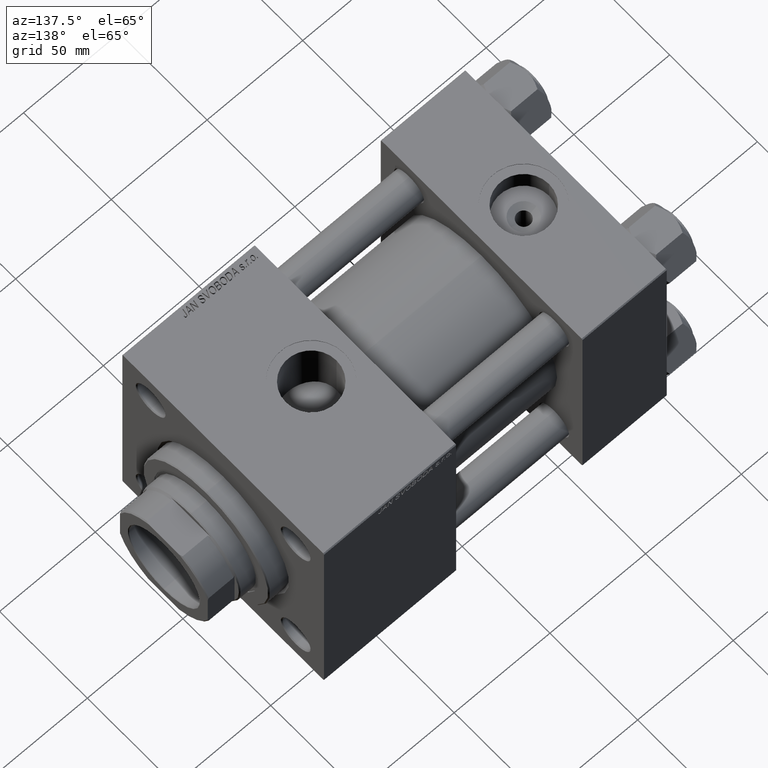
[diagram: clean part render]
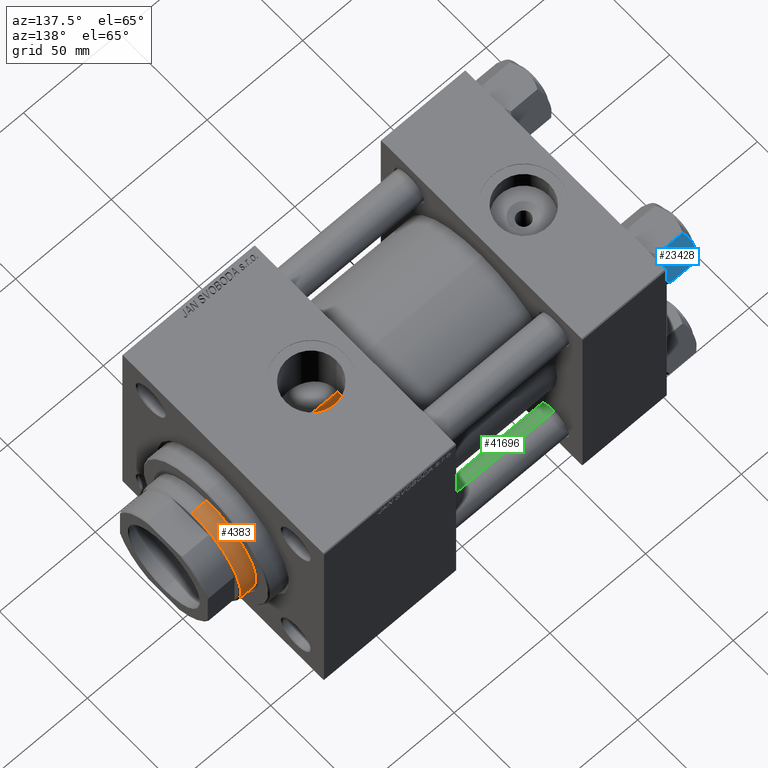
[diagram: same view with three faces highlighted in distinct colors, each labeled with its STEP entity id]
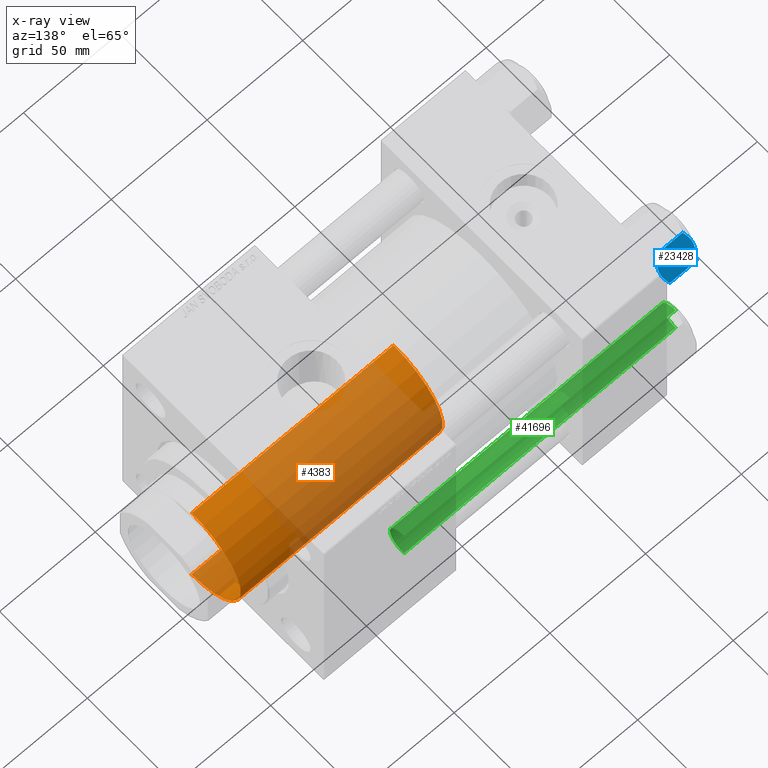
[diagram: x-ray of the same camera — body ghosted, the three highlighted faces saturated]
A machine part, auxiliary view with three faces highlighted in distinct colors.
The next image is the same camera in x-ray (body ghosted, the three faces saturated) — at least one of them is partly hidden behind the body in this view.
Their STEP definitions:

[orange] entity #4383 — the highlighted cylindrical surface (partial cylindrical patch) has radius 28 mm, axis along (-1, 0, 0).
#357 = DIRECTION ( 'NONE',  ( -0.000000000000000000, -0.000000000000000000, -1.000000000000000000 ) ) ;
#610 = CARTESIAN_POINT ( 'NONE',  ( 0.000000000000000000, 0.000000000000000000, 152.0000000000000000 ) ) ;
#2007 = EDGE_CURVE ( 'NONE', #3173, #47064, #9698, .T. ) ;
#2145 = CARTESIAN_POINT ( 'NONE',  ( 0.000000000000000000, 0.000000000000000000, 151.4999999999999432 ) ) ;
#2280 = ORIENTED_EDGE ( 'NONE', *, *, #49222, .T. ) ;
#3173 = VERTEX_POINT ( 'NONE', #11022 ) ;
#3791 = CARTESIAN_POINT ( 'NONE',  ( 0.000000000000000000, 0.000000000000000000, 46.00000000000000000 ) ) ;
#4383 = ADVANCED_FACE ( 'NONE', ( #35434 ), #32111, .T. ) ;
#7218 = VERTEX_POINT ( 'NONE', #13693 ) ;
#8846 = AXIS2_PLACEMENT_3D ( 'NONE', #610, #357, #16232 ) ;
#8937 = ORIENTED_EDGE ( 'NONE', *, *, #30103, .F. ) ;
#9698 = CIRCLE ( 'NONE', #40817, 28.00000000000000000 ) ;
#11022 = CARTESIAN_POINT ( 'NONE',  ( 28.00000000000000000, 3.429011037612589276E-15, 151.4999999999999432 ) ) ;
#12284 = CARTESIAN_POINT ( 'NONE',  ( 28.00000000000000000, 3.429011037612589276E-15, 152.0000000000000000 ) ) ;
#12530 = DIRECTION ( 'NONE',  ( -0.000000000000000000, -0.000000000000000000, -1.000000000000000000 ) ) ;
#13693 = CARTESIAN_POINT ( 'NONE',  ( -28.00000000000000000, 0.000000000000000000, 46.00000000000000000 ) ) ;
#14314 = EDGE_CURVE ( 'NONE', #47064, #7218, #35450, .T. ) ;
#16232 = DIRECTION ( 'NONE',  ( -1.000000000000000000, 0.000000000000000000, 0.000000000000000000 ) ) ;
#18019 = VECTOR ( 'NONE', #50575, 1000.000000000000000 ) ;
#19409 = EDGE_LOOP ( 'NONE', ( #8937, #36592, #27982, #2280 ) ) ;
#19418 = DIRECTION ( 'NONE',  ( 0.000000000000000000, 0.000000000000000000, 1.000000000000000000 ) ) ;
#20861 = VECTOR ( 'NONE', #12530, 1000.000000000000000 ) ;
#27871 = CARTESIAN_POINT ( 'NONE',  ( 28.00000000000000000, 3.429011037612589276E-15, 46.00000000000000000 ) ) ;
#27982 = ORIENTED_EDGE ( 'NONE', *, *, #14314, .T. ) ;
#29541 = DIRECTION ( 'NONE',  ( 0.000000000000000000, 0.000000000000000000, -1.000000000000000000 ) ) ;
#30103 = EDGE_CURVE ( 'NONE', #3173, #31252, #32012, .T. ) ;
#31252 = VERTEX_POINT ( 'NONE', #27871 ) ;
#32012 = LINE ( 'NONE', #12284, #20861 ) ;
#32111 = CYLINDRICAL_SURFACE ( 'NONE', #8846, 28.00000000000000000 ) ;
#35434 = FACE_OUTER_BOUND ( 'NONE', #19409, .T. ) ;
#35450 = LINE ( 'NONE', #43399, #18019 ) ;
#35518 = CARTESIAN_POINT ( 'NONE',  ( -28.00000000000000000, 0.000000000000000000, 151.4999999999999432 ) ) ;
#35760 = AXIS2_PLACEMENT_3D ( 'NONE', #3791, #19418, #50155 ) ;
#36592 = ORIENTED_EDGE ( 'NONE', *, *, #2007, .T. ) ;
#40676 = CIRCLE ( 'NONE', #35760, 28.00000000000000000 ) ;
#40817 = AXIS2_PLACEMENT_3D ( 'NONE', #2145, #29541, #45178 ) ;
#43399 = CARTESIAN_POINT ( 'NONE',  ( -28.00000000000000000, 0.000000000000000000, 152.0000000000000000 ) ) ;
#45178 = DIRECTION ( 'NONE',  ( 1.000000000000000000, 0.000000000000000000, 0.000000000000000000 ) ) ;
#47064 = VERTEX_POINT ( 'NONE', #35518 ) ;
#49222 = EDGE_CURVE ( 'NONE', #7218, #31252, #40676, .T. ) ;
#50155 = DIRECTION ( 'NONE',  ( 1.000000000000000000, 0.000000000000000000, 0.000000000000000000 ) ) ;
#50575 = DIRECTION ( 'NONE',  ( -0.000000000000000000, -0.000000000000000000, -1.000000000000000000 ) ) ;

[blue] entity #23428 — the highlighted planar face has unit normal (0, -0.866, -0.5).
#90 = ORIENTED_EDGE ( 'NONE', *, *, #2625, .F. ) ;
#2227 = EDGE_CURVE ( 'NONE', #18413, #7791, #13364, .T. ) ;
#2625 = EDGE_CURVE ( 'NONE', #20307, #41512, #44242, .T. ) ;
#2718 = CARTESIAN_POINT ( 'NONE',  ( 7.810000000000001386, 13.52731680711293905, -16.00000000000000000 ) ) ;
#2851 = CARTESIAN_POINT ( 'NONE',  ( 0.6693083573771170247, 13.52731680711294082, -17.98750666918891028 ) ) ;
#2895 = CARTESIAN_POINT ( 'NONE',  ( 0.000000000000000000, 13.52731680711293905, 0.000000000000000000 ) ) ;
#3112 = CARTESIAN_POINT ( 'NONE',  ( 2.644243758052986060, 13.52731680711294082, -17.75917188019759152 ) ) ;
#3138 = VECTOR ( 'NONE', #13867, 1000.000000000000000 ) ;
#3573 = EDGE_CURVE ( 'NONE', #7791, #40905, #41105, .T. ) ;
#3633 = CARTESIAN_POINT ( 'NONE',  ( 0.000000000000000000, 13.52731680711293905, 0.000000000000000000 ) ) ;
#6440 = CARTESIAN_POINT ( 'NONE',  ( 7.030203932307573567, 13.52731680711294260, -16.29099812210860065 ) ) ;
#7215 = CARTESIAN_POINT ( 'NONE',  ( -0.6693083573771212436, 13.52731680711293905, -0.01249333081108270314 ) ) ;
#7775 = CARTESIAN_POINT ( 'NONE',  ( -2.638177715023106273, 13.52731680711294260, -17.79984593233011125 ) ) ;
#7791 = VERTEX_POINT ( 'NONE', #50400 ) ;
#9153 = CARTESIAN_POINT ( 'NONE',  ( -7.809999999999997833, 13.52731680711293905, -16.00000000000000000 ) ) ;
#10733 = CARTESIAN_POINT ( 'NONE',  ( 7.810000000000001386, 13.52731680711293905, -1.999999999999998224 ) ) ;
#10888 = EDGE_CURVE ( 'NONE', #40905, #20307, #44812, .T. ) ;
#11040 = CARTESIAN_POINT ( 'NONE',  ( 7.622943475354635012, 13.52731680711293905, -16.00000000000000000 ) ) ;
#11570 = CARTESIAN_POINT ( 'NONE',  ( -5.184073258379404692, 13.52731680711294082, -0.9481437906500841395 ) ) ;
#11711 = VECTOR ( 'NONE', #36912, 1000.000000000000000 ) ;
#11825 = CARTESIAN_POINT ( 'NONE',  ( -2.644243758052991389, 13.52731680711294260, -0.2408281198023992098 ) ) ;
#11908 = VERTEX_POINT ( 'NONE', #10733 ) ;
#12236 = VECTOR ( 'NONE', #38775, 1000.000000000000000 ) ;
#12413 = CARTESIAN_POINT ( 'NONE',  ( 7.622943475354646559, 13.52731680711293905, -2.000000000000000000 ) ) ;
#12851 = LINE ( 'NONE', #43838, #27250 ) ;
#13080 = CARTESIAN_POINT ( 'NONE',  ( -7.809999999999997833, 13.52731680711293905, -18.00000000000000000 ) ) ;
#13364 = LINE ( 'NONE', #44619, #3138 ) ;
#13412 = EDGE_CURVE ( 'NONE', #18413, #18392, #35696, .T. ) ;
#13690 = EDGE_CURVE ( 'NONE', #38854, #36050, #47754, .T. ) ;
#13867 = DIRECTION ( 'NONE',  ( 1.000000000000000000, 0.000000000000000000, 0.000000000000000000 ) ) ;
#14131 = CARTESIAN_POINT ( 'NONE',  ( 1.663410456966170292, 13.52731680711293905, -17.90195050864299731 ) ) ;
#14448 = CARTESIAN_POINT ( 'NONE',  ( -5.189513245496320870, 13.52731680711293727, -17.04988915682673678 ) ) ;
#15205 = CARTESIAN_POINT ( 'NONE',  ( -7.030888348548050892, 13.52731680711293905, -16.29066211644969897 ) ) ;
#15415 = CARTESIAN_POINT ( 'NONE',  ( -1.333889873825133243, 13.52731680711293727, -0.06156641003439514842 ) ) ;
#16177 = CARTESIAN_POINT ( 'NONE',  ( -1.663410456966174511, 13.52731680711293905, -0.09804949135699092544 ) ) ;
#16239 = CARTESIAN_POINT ( 'NONE',  ( -7.809999999999997833, 13.52731680711293905, -18.00000000000000000 ) ) ;
#16411 = VERTEX_POINT ( 'NONE', #12413 ) ;
#16565 = EDGE_CURVE ( 'NONE', #16411, #38854, #49352, .T. ) ;
#16688 = CARTESIAN_POINT ( 'NONE',  ( -7.809999999999997833, 13.52731680711293905, -1.999999999999998224 ) ) ;
#18222 = CARTESIAN_POINT ( 'NONE',  ( 1.333889873825128580, 13.52731680711293549, -17.93843358996559090 ) ) ;
#18392 = VERTEX_POINT ( 'NONE', #16688 ) ;
#18413 = VERTEX_POINT ( 'NONE', #31539 ) ;
#18738 = CARTESIAN_POINT ( 'NONE',  ( 4.557734399832407135, 13.52731680711293905, -17.26585298258848411 ) ) ;
#18781 = CARTESIAN_POINT ( 'NONE',  ( 4.553769687922306630, 13.52731680711293905, -0.7327291995145164272 ) ) ;
#18996 = CARTESIAN_POINT ( 'NONE',  ( -3.287826776903153281, 13.52731680711294082, -0.3804584453753372952 ) ) ;
#19303 = CARTESIAN_POINT ( 'NONE',  ( 0.000000000000000000, 13.52731680711293905, -18.00000000000000000 ) ) ;
#20307 = VERTEX_POINT ( 'NONE', #42742 ) ;
#21176 = VECTOR ( 'NONE', #24760, 1000.000000000000000 ) ;
#21238 = ORIENTED_EDGE ( 'NONE', *, *, #3573, .F. ) ;
#21294 = ORIENTED_EDGE ( 'NONE', *, *, #2227, .F. ) ;
#22168 = EDGE_CURVE ( 'NONE', #11908, #16411, #12851, .T. ) ;
#22255 = EDGE_CURVE ( 'NONE', #36050, #18392, #22461, .T. ) ;
#22461 = LINE ( 'NONE', #25380, #11711 ) ;
#22835 = CARTESIAN_POINT ( 'NONE',  ( -7.030203932307585113, 13.52731680711294082, -1.709001877891394239 ) ) ;
#23386 = CARTESIAN_POINT ( 'NONE',  ( -1.335584685993413512, 13.52731680711294082, -17.99999999999999645 ) ) ;
#23428 = ADVANCED_FACE ( 'NONE', ( #33776 ), #33294, .F. ) ;
#23595 = CARTESIAN_POINT ( 'NONE',  ( -0.3330234424833830031, 13.52731680711293905, 5.717472393966525748E-18 ) ) ;
#24760 = DIRECTION ( 'NONE',  ( 1.000000000000000000, 0.000000000000000000, 0.000000000000000000 ) ) ;
#25380 = CARTESIAN_POINT ( 'NONE',  ( -7.809999999999997833, 13.52731680711293905, -1.999999999999998224 ) ) ;
#26199 = CARTESIAN_POINT ( 'NONE',  ( 2.638177715023107162, 13.52731680711293905, -0.2001540676698846388 ) ) ;
#26406 = CARTESIAN_POINT ( 'NONE',  ( 6.422751913021807368, 13.52731680711294260, -16.56349088907410660 ) ) ;
#27084 = CARTESIAN_POINT ( 'NONE',  ( -7.622943475354646559, 13.52731680711293905, -2.000000000000000000 ) ) ;
#27250 = VECTOR ( 'NONE', #39732, 1000.000000000000000 ) ;
#27435 = CARTESIAN_POINT ( 'NONE',  ( 0.000000000000000000, 13.52731680711293905, 0.000000000000000000 ) ) ;
#27439 = CARTESIAN_POINT ( 'NONE',  ( -7.622943475354646559, 13.52731680711293905, -2.000000000000000000 ) ) ;
#27701 = ORIENTED_EDGE ( 'NONE', *, *, #22255, .F. ) ;
#27728 = EDGE_LOOP ( 'NONE', ( #21294, #37982, #27701, #29409, #43023, #32782, #47544, #90, #43270, #21238 ) ) ;
#28698 = DIRECTION ( 'NONE',  ( 0.000000000000000000, -0.000000000000000000, -1.000000000000000000 ) ) ;
#28937 = AXIS2_PLACEMENT_3D ( 'NONE', #13080, #33049, #28698 ) ;
#29409 = ORIENTED_EDGE ( 'NONE', *, *, #13690, .F. ) ;
#30315 = CARTESIAN_POINT ( 'NONE',  ( -4.553769687922299525, 13.52731680711293905, -17.26727080048547691 ) ) ;
#30468 = CARTESIAN_POINT ( 'NONE',  ( 0.000000000000000000, 13.52731680711293905, -18.00000000000000000 ) ) ;
#30823 = CARTESIAN_POINT ( 'NONE',  ( -7.622943475354635012, 13.52731680711293905, -16.00000000000000000 ) ) ;
#31539 = CARTESIAN_POINT ( 'NONE',  ( -7.809999999999997833, 13.52731680711293905, -16.00000000000000000 ) ) ;
#32346 = LINE ( 'NONE', #44640, #42307 ) ;
#32782 = ORIENTED_EDGE ( 'NONE', *, *, #22168, .F. ) ;
#33049 = DIRECTION ( 'NONE',  ( 0.000000000000000000, -1.000000000000000000, 0.000000000000000000 ) ) ;
#33294 = PLANE ( 'NONE',  #28937 ) ;
#33776 = FACE_OUTER_BOUND ( 'NONE', #27728, .T. ) ;
#33841 = CARTESIAN_POINT ( 'NONE',  ( 3.287826776903147952, 13.52731680711293905, -17.61954155462466431 ) ) ;
#33886 = CARTESIAN_POINT ( 'NONE',  ( 1.335584685993417065, 13.52731680711294260, -9.486769009248166263E-17 ) ) ;
#34593 = CARTESIAN_POINT ( 'NONE',  ( 5.184073258379390481, 13.52731680711294260, -17.05185620934991420 ) ) ;
#35696 = LINE ( 'NONE', #16239, #12236 ) ;
#36050 = VERTEX_POINT ( 'NONE', #27084 ) ;
#36170 = DIRECTION ( 'NONE',  ( -0.000000000000000000, -0.000000000000000000, 1.000000000000000000 ) ) ;
#36912 = DIRECTION ( 'NONE',  ( -1.000000000000000000, 0.000000000000000000, 0.000000000000000000 ) ) ;
#37686 = CARTESIAN_POINT ( 'NONE',  ( 0.3330234424833819484, 13.52731680711294260, -18.00000000000000000 ) ) ;
#37982 = ORIENTED_EDGE ( 'NONE', *, *, #13412, .T. ) ;
#38485 = CARTESIAN_POINT ( 'NONE',  ( 7.622943475354646559, 13.52731680711293905, -2.000000000000000000 ) ) ;
#38775 = DIRECTION ( 'NONE',  ( -0.000000000000000000, -0.000000000000000000, 1.000000000000000000 ) ) ;
#38854 = VERTEX_POINT ( 'NONE', #27435 ) ;
#39732 = DIRECTION ( 'NONE',  ( -1.000000000000000000, 0.000000000000000000, 0.000000000000000000 ) ) ;
#40905 = VERTEX_POINT ( 'NONE', #30468 ) ;
#41105 = B_SPLINE_CURVE_WITH_KNOTS ( 'NONE', 3,
 ( #30823, #15205, #46466, #14448, #30315, #7775, #23386, #19303 ),
 .UNSPECIFIED., .F., .F.,
 ( 4, 2, 2, 4 ),
 ( 0.01980594295952729789, 0.02179054093496183772, 0.02377513891039637409, 0.02774433486126544682 ),
 .UNSPECIFIED. ) ;
#41512 = VERTEX_POINT ( 'NONE', #2718 ) ;
#41540 = CARTESIAN_POINT ( 'NONE',  ( 0.000000000000000000, 13.52731680711293905, -18.00000000000000000 ) ) ;
#41584 = CARTESIAN_POINT ( 'NONE',  ( 5.189513245496330640, 13.52731680711293727, -0.9501108431732594450 ) ) ;
#42307 = VECTOR ( 'NONE', #36170, 1000.000000000000000 ) ;
#42338 = CARTESIAN_POINT ( 'NONE',  ( 7.030888348548067768, 13.52731680711294260, -1.709337883550299253 ) ) ;
#42742 = CARTESIAN_POINT ( 'NONE',  ( 7.622943475354635012, 13.52731680711293905, -16.00000000000000000 ) ) ;
#43023 = ORIENTED_EDGE ( 'NONE', *, *, #16565, .F. ) ;
#43270 = ORIENTED_EDGE ( 'NONE', *, *, #10888, .F. ) ;
#43838 = CARTESIAN_POINT ( 'NONE',  ( -7.809999999999997833, 13.52731680711293905, -1.999999999999998224 ) ) ;
#44242 = LINE ( 'NONE', #9153, #21176 ) ;
#44619 = CARTESIAN_POINT ( 'NONE',  ( -7.809999999999997833, 13.52731680711293905, -16.00000000000000000 ) ) ;
#44640 = CARTESIAN_POINT ( 'NONE',  ( 7.810000000000001386, 13.52731680711293905, -18.00000000000000000 ) ) ;
#44812 = B_SPLINE_CURVE_WITH_KNOTS ( 'NONE', 3,
 ( #41540, #37686, #2851, #18222, #14131, #3112, #33841, #18738, #34593, #26406, #6440, #11040 ),
 .UNSPECIFIED., .F., .F.,
 ( 4, 2, 2, 2, 2, 4 ),
 ( 0.02774433486126544682, 0.02873404020403548184, 0.02972374554680552033, 0.03170315623234559038, 0.03368256691788566737, 0.03566197760342573742 ),
 .UNSPECIFIED. ) ;
#46167 = CARTESIAN_POINT ( 'NONE',  ( -6.422751913021825132, 13.52731680711294260, -1.436509110925897614 ) ) ;
#46192 = CARTESIAN_POINT ( 'NONE',  ( 6.427364677720476926, 13.52731680711294082, -1.438506937155140664 ) ) ;
#46466 = CARTESIAN_POINT ( 'NONE',  ( -6.427364677720459163, 13.52731680711293549, -16.56149306284485334 ) ) ;
#46924 = CARTESIAN_POINT ( 'NONE',  ( -4.557734399832415129, 13.52731680711294260, -0.7341470174115148906 ) ) ;
#47544 = ORIENTED_EDGE ( 'NONE', *, *, #49806, .F. ) ;
#47754 = B_SPLINE_CURVE_WITH_KNOTS ( 'NONE', 3,
 ( #3633, #23595, #7215, #15415, #16177, #11825, #18996, #46924, #11570, #46167, #22835, #27439 ),
 .UNSPECIFIED., .F., .F.,
 ( 4, 2, 2, 2, 2, 4 ),
 ( 0.02774433486126545376, 0.02873404020403549225, 0.02972374554680553074, 0.03170315623234560426, 0.03368256691788568125, 0.03566197760342575823 ),
 .UNSPECIFIED. ) ;
#49352 = B_SPLINE_CURVE_WITH_KNOTS ( 'NONE', 3,
 ( #38485, #42338, #46192, #41584, #18781, #26199, #33886, #2895 ),
 .UNSPECIFIED., .F., .F.,
 ( 4, 2, 2, 4 ),
 ( 0.01980594295952728401, 0.02179054093496182731, 0.02377513891039636715, 0.02774433486126545376 ),
 .UNSPECIFIED. ) ;
#49806 = EDGE_CURVE ( 'NONE', #41512, #11908, #32346, .T. ) ;
#50400 = CARTESIAN_POINT ( 'NONE',  ( -7.622943475354635012, 13.52731680711293905, -16.00000000000000000 ) ) ;

[green] entity #41696 — the highlighted cylindrical surface (edge-blend (fillet) strip) has radius 8 mm, axis along (1, -0, -0).
#2091 = DIRECTION ( 'NONE',  ( -0.000000000000000000, -0.000000000000000000, -1.000000000000000000 ) ) ;
#2835 = DIRECTION ( 'NONE',  ( -0.000000000000000000, -0.000000000000000000, -1.000000000000000000 ) ) ;
#3808 = VECTOR ( 'NONE', #2091, 1000.000000000000000 ) ;
#4238 = CARTESIAN_POINT ( 'NONE',  ( 0.000000000000000000, 0.000000000000000000, 143.0000000000000000 ) ) ;
#4575 = ORIENTED_EDGE ( 'NONE', *, *, #48803, .T. ) ;
#6126 = VERTEX_POINT ( 'NONE', #25994 ) ;
#7063 = FACE_OUTER_BOUND ( 'NONE', #33066, .T. ) ;
#7212 = CARTESIAN_POINT ( 'NONE',  ( 8.000000000000000000, 9.797174393178825657E-16, 0.4999999999999726885 ) ) ;
#9881 = DIRECTION ( 'NONE',  ( 0.000000000000000000, 0.000000000000000000, -1.000000000000000000 ) ) ;
#10516 = VERTEX_POINT ( 'NONE', #13712 ) ;
#10627 = CIRCLE ( 'NONE', #13085, 8.000000000000000000 ) ;
#10778 = LINE ( 'NONE', #18459, #3808 ) ;
#11162 = CYLINDRICAL_SURFACE ( 'NONE', #33854, 8.000000000000000000 ) ;
#11343 = DIRECTION ( 'NONE',  ( -0.000000000000000000, -0.000000000000000000, 1.000000000000000000 ) ) ;
#11538 = AXIS2_PLACEMENT_3D ( 'NONE', #34893, #11343, #37978 ) ;
#13085 = AXIS2_PLACEMENT_3D ( 'NONE', #17338, #9881, #13734 ) ;
#13712 = CARTESIAN_POINT ( 'NONE',  ( -8.000000000000000000, 0.000000000000000000, 142.4999999999999716 ) ) ;
#13734 = DIRECTION ( 'NONE',  ( 1.000000000000000000, 0.000000000000000000, 0.000000000000000000 ) ) ;
#14100 = EDGE_CURVE ( 'NONE', #6126, #10516, #10627, .T. ) ;
#14625 = LINE ( 'NONE', #22286, #48001 ) ;
#15555 = ORIENTED_EDGE ( 'NONE', *, *, #16646, .T. ) ;
#16646 = EDGE_CURVE ( 'NONE', #24887, #44285, #22963, .T. ) ;
#17338 = CARTESIAN_POINT ( 'NONE',  ( 0.000000000000000000, 0.000000000000000000, 142.4999999999999716 ) ) ;
#18459 = CARTESIAN_POINT ( 'NONE',  ( 8.000000000000000000, 9.797174393178825657E-16, 143.0000000000000000 ) ) ;
#19679 = ORIENTED_EDGE ( 'NONE', *, *, #48856, .F. ) ;
#22286 = CARTESIAN_POINT ( 'NONE',  ( -8.000000000000000000, 0.000000000000000000, 143.0000000000000000 ) ) ;
#22963 = CIRCLE ( 'NONE', #11538, 8.000000000000000000 ) ;
#24887 = VERTEX_POINT ( 'NONE', #31931 ) ;
#25994 = CARTESIAN_POINT ( 'NONE',  ( 8.000000000000000000, 9.797174393178825657E-16, 142.4999999999999716 ) ) ;
#31931 = CARTESIAN_POINT ( 'NONE',  ( -8.000000000000000000, 0.000000000000000000, 0.4999999999999726885 ) ) ;
#33066 = EDGE_LOOP ( 'NONE', ( #19679, #43022, #4575, #15555 ) ) ;
#33854 = AXIS2_PLACEMENT_3D ( 'NONE', #4238, #38558, #38310 ) ;
#34893 = CARTESIAN_POINT ( 'NONE',  ( 0.000000000000000000, 0.000000000000000000, 0.4999999999999726885 ) ) ;
#37978 = DIRECTION ( 'NONE',  ( 1.000000000000000000, 0.000000000000000000, 0.000000000000000000 ) ) ;
#38310 = DIRECTION ( 'NONE',  ( -1.000000000000000000, 0.000000000000000000, 0.000000000000000000 ) ) ;
#38558 = DIRECTION ( 'NONE',  ( -0.000000000000000000, -0.000000000000000000, -1.000000000000000000 ) ) ;
#41696 = ADVANCED_FACE ( 'NONE', ( #7063 ), #11162, .T. ) ;
#43022 = ORIENTED_EDGE ( 'NONE', *, *, #14100, .T. ) ;
#44285 = VERTEX_POINT ( 'NONE', #7212 ) ;
#48001 = VECTOR ( 'NONE', #2835, 1000.000000000000000 ) ;
#48803 = EDGE_CURVE ( 'NONE', #10516, #24887, #14625, .T. ) ;
#48856 = EDGE_CURVE ( 'NONE', #6126, #44285, #10778, .T. ) ;